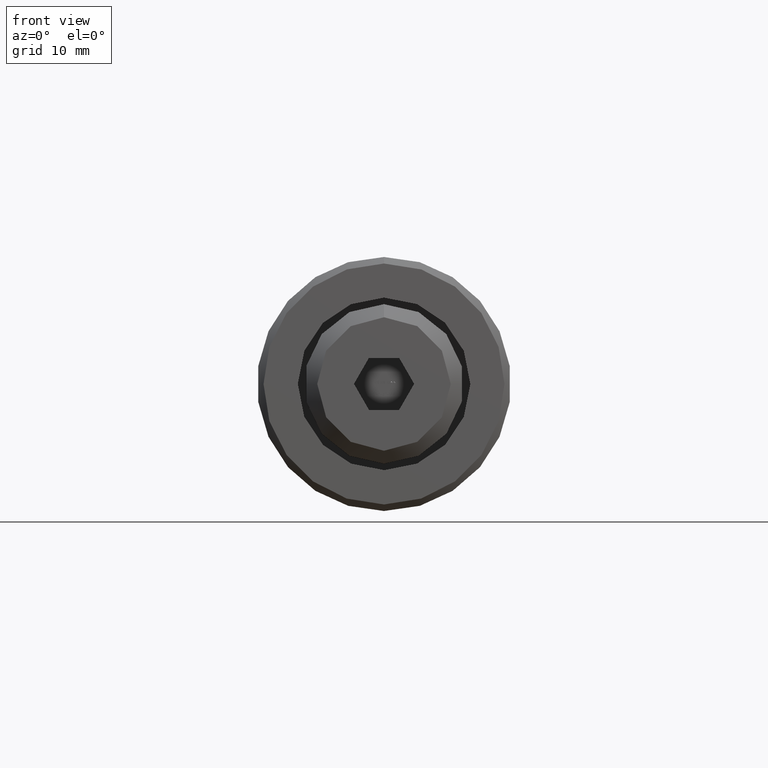
[diagram: clean part render]
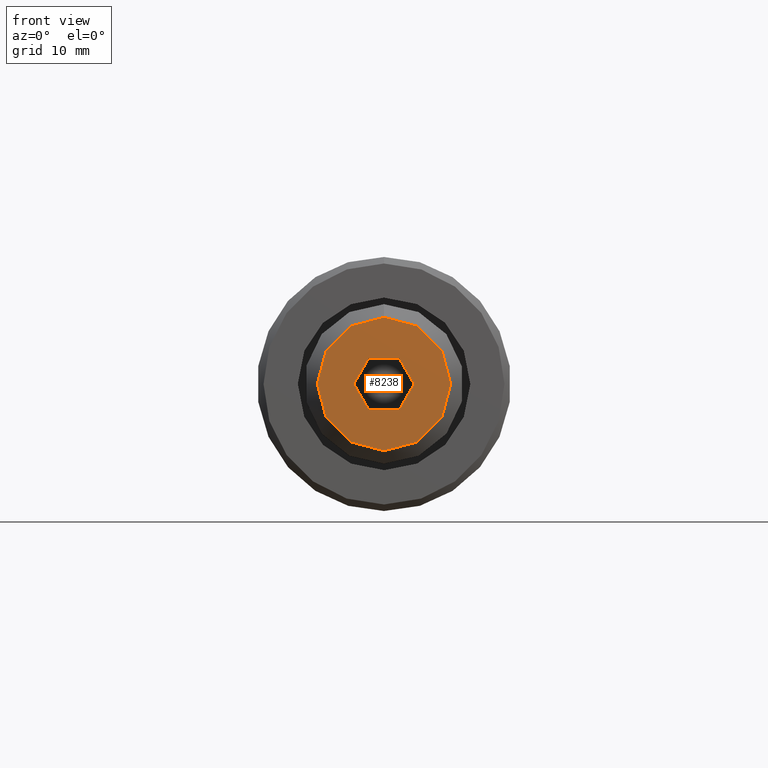
[diagram: same view with one face highlighted and labeled with its STEP entity id]
A machine part, front view. The second image highlights one B-rep face of the part: STEP entity #8238.
In plain terms, the highlighted planar face has unit normal (0, -1, 0).
Its self-contained STEP definition (entity closure, byte-faithful):
#149 = DIRECTION ( 'NONE',  ( 0.4999999999999999445, -0.000000000000000000, -0.8660254037844387076 ) ) ;
#425 = EDGE_LOOP ( 'NONE', ( #1757, #2414, #12082, #4141, #10498, #7546 ) ) ;
#575 = FACE_BOUND ( 'NONE', #425, .T. ) ;
#721 = DIRECTION ( 'NONE',  ( 0.000000000000000000, -1.000000000000000000, -0.000000000000000000 ) ) ;
#1269 = CARTESIAN_POINT ( 'NONE',  ( -2.309401076758502036, 0.000000000000000000, 4.000000000000000000 ) ) ;
#1285 = EDGE_LOOP ( 'NONE', ( #8641, #2398 ) ) ;
#1316 = FACE_OUTER_BOUND ( 'NONE', #1285, .T. ) ;
#1601 = EDGE_CURVE ( 'NONE', #7451, #14423, #14290, .T. ) ;
#1757 = ORIENTED_EDGE ( 'NONE', *, *, #12879, .F. ) ;
#2363 = VECTOR ( 'NONE', #5995, 1000.000000000000114 ) ;
#2398 = ORIENTED_EDGE ( 'NONE', *, *, #2783, .T. ) ;
#2409 = DIRECTION ( 'NONE',  ( 0.000000000000000000, 0.000000000000000000, -1.000000000000000000 ) ) ;
#2414 = ORIENTED_EDGE ( 'NONE', *, *, #1601, .F. ) ;
#2560 = LINE ( 'NONE', #13852, #12084 ) ;
#2783 = EDGE_CURVE ( 'NONE', #6869, #14840, #3663, .T. ) ;
#2918 = CARTESIAN_POINT ( 'NONE',  ( 2.309401076758503368, 0.000000000000000000, -3.999999999999999112 ) ) ;
#2937 = VERTEX_POINT ( 'NONE', #12106 ) ;
#3151 = CARTESIAN_POINT ( 'NONE',  ( 0.000000000000000000, -7.500961644777538671E-16, 0.000000000000000000 ) ) ;
#3651 = DIRECTION ( 'NONE',  ( -0.000000000000000000, -1.000000000000000000, -0.000000000000000000 ) ) ;
#3663 = CIRCLE ( 'NONE', #8242, 10.25000000000000888 ) ;
#3896 = CARTESIAN_POINT ( 'NONE',  ( -2.309401076758501592, -0.000000000000000000, -4.000000000000000000 ) ) ;
#4141 = ORIENTED_EDGE ( 'NONE', *, *, #10159, .F. ) ;
#4592 = CARTESIAN_POINT ( 'NONE',  ( -4.618802153517004960, 0.000000000000000000, 8.852620718173047188E-16 ) ) ;
#4771 = VERTEX_POINT ( 'NONE', #13744 ) ;
#5215 = CIRCLE ( 'NONE', #11363, 10.25000000000000888 ) ;
#5517 = PLANE ( 'NONE',  #8454 ) ;
#5674 = CARTESIAN_POINT ( 'NONE',  ( 12.25000000000000000, -7.500961644777538671E-16, 0.000000000000000000 ) ) ;
#5694 = CARTESIAN_POINT ( 'NONE',  ( 2.309401076758503368, 0.000000000000000000, -3.999999999999999112 ) ) ;
#5995 = DIRECTION ( 'NONE',  ( -0.5000000000000003331, 0.000000000000000000, 0.8660254037844383745 ) ) ;
#6065 = CARTESIAN_POINT ( 'NONE',  ( 0.000000000000000000, -7.500961644777538671E-16, 0.000000000000000000 ) ) ;
#6157 = LINE ( 'NONE', #11888, #11350 ) ;
#6323 = DIRECTION ( 'NONE',  ( 0.5000000000000000000, 0.000000000000000000, 0.8660254037844385966 ) ) ;
#6869 = VERTEX_POINT ( 'NONE', #9139 ) ;
#7451 = VERTEX_POINT ( 'NONE', #3896 ) ;
#7546 = ORIENTED_EDGE ( 'NONE', *, *, #14445, .F. ) ;
#7571 = LINE ( 'NONE', #12041, #2363 ) ;
#7691 = CARTESIAN_POINT ( 'NONE',  ( -2.309401076758501592, -0.000000000000000000, -4.000000000000000000 ) ) ;
#8013 = DIRECTION ( 'NONE',  ( 0.000000000000000000, 0.000000000000000000, -1.000000000000000000 ) ) ;
#8238 = ADVANCED_FACE ( 'NONE', ( #575, #1316 ), #5517, .T. ) ;
#8242 = AXIS2_PLACEMENT_3D ( 'NONE', #6065, #3651, #2409 ) ;
#8454 = AXIS2_PLACEMENT_3D ( 'NONE', #5674, #721, #8013 ) ;
#8641 = ORIENTED_EDGE ( 'NONE', *, *, #8950, .T. ) ;
#8687 = VECTOR ( 'NONE', #6323, 1000.000000000000227 ) ;
#8925 = LINE ( 'NONE', #14025, #14691 ) ;
#8950 = EDGE_CURVE ( 'NONE', #14840, #6869, #5215, .T. ) ;
#9007 = VERTEX_POINT ( 'NONE', #4592 ) ;
#9061 = DIRECTION ( 'NONE',  ( 0.000000000000000000, 0.000000000000000000, -1.000000000000000000 ) ) ;
#9131 = CARTESIAN_POINT ( 'NONE',  ( 0.000000000000000000, -7.500961644777538671E-16, 10.25000000000000888 ) ) ;
#9139 = CARTESIAN_POINT ( 'NONE',  ( 1.377727649040772981E-15, -7.500961644777538671E-16, -10.25000000000000888 ) ) ;
#9382 = DIRECTION ( 'NONE',  ( -1.000000000000000000, 0.000000000000000000, 0.000000000000000000 ) ) ;
#9641 = EDGE_CURVE ( 'NONE', #9007, #7451, #8925, .T. ) ;
#9775 = VECTOR ( 'NONE', #10434, 1000.000000000000000 ) ;
#9786 = DIRECTION ( 'NONE',  ( -0.4999999999999999445, 0.000000000000000000, -0.8660254037844385966 ) ) ;
#10159 = EDGE_CURVE ( 'NONE', #15042, #9007, #6157, .T. ) ;
#10413 = DIRECTION ( 'NONE',  ( -0.000000000000000000, -1.000000000000000000, -0.000000000000000000 ) ) ;
#10434 = DIRECTION ( 'NONE',  ( 1.000000000000000000, 0.000000000000000000, 1.877893248421449775E-16 ) ) ;
#10498 = ORIENTED_EDGE ( 'NONE', *, *, #12165, .F. ) ;
#11350 = VECTOR ( 'NONE', #9786, 1000.000000000000114 ) ;
#11363 = AXIS2_PLACEMENT_3D ( 'NONE', #3151, #10413, #9061 ) ;
#11888 = CARTESIAN_POINT ( 'NONE',  ( -2.309401076758502036, 0.000000000000000000, 4.000000000000000000 ) ) ;
#11893 = LINE ( 'NONE', #2918, #8687 ) ;
#12041 = CARTESIAN_POINT ( 'NONE',  ( 4.618802153517006737, 0.000000000000000000, 8.039053502373356373E-16 ) ) ;
#12082 = ORIENTED_EDGE ( 'NONE', *, *, #9641, .F. ) ;
#12084 = VECTOR ( 'NONE', #9382, 1000.000000000000000 ) ;
#12106 = CARTESIAN_POINT ( 'NONE',  ( 4.618802153517004960, -7.500961644777538671E-16, 8.673617379884035472E-16 ) ) ;
#12165 = EDGE_CURVE ( 'NONE', #4771, #15042, #2560, .T. ) ;
#12879 = EDGE_CURVE ( 'NONE', #14423, #2937, #11893, .T. ) ;
#13744 = CARTESIAN_POINT ( 'NONE',  ( 2.309401076758502036, 0.000000000000000000, 4.000000000000000000 ) ) ;
#13852 = CARTESIAN_POINT ( 'NONE',  ( 2.309401076758502036, 0.000000000000000000, 4.000000000000000000 ) ) ;
#14025 = CARTESIAN_POINT ( 'NONE',  ( -4.618802153517004960, 0.000000000000000000, 8.852620718173047188E-16 ) ) ;
#14290 = LINE ( 'NONE', #7691, #9775 ) ;
#14423 = VERTEX_POINT ( 'NONE', #5694 ) ;
#14445 = EDGE_CURVE ( 'NONE', #2937, #4771, #7571, .T. ) ;
#14691 = VECTOR ( 'NONE', #149, 1000.000000000000000 ) ;
#14840 = VERTEX_POINT ( 'NONE', #9131 ) ;
#15042 = VERTEX_POINT ( 'NONE', #1269 ) ;